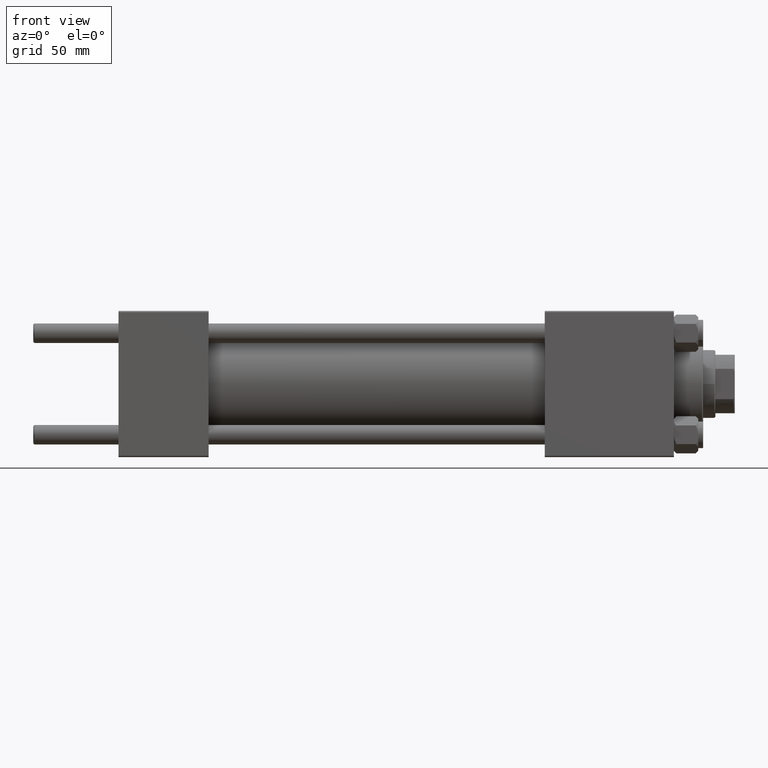
[diagram: clean part render]
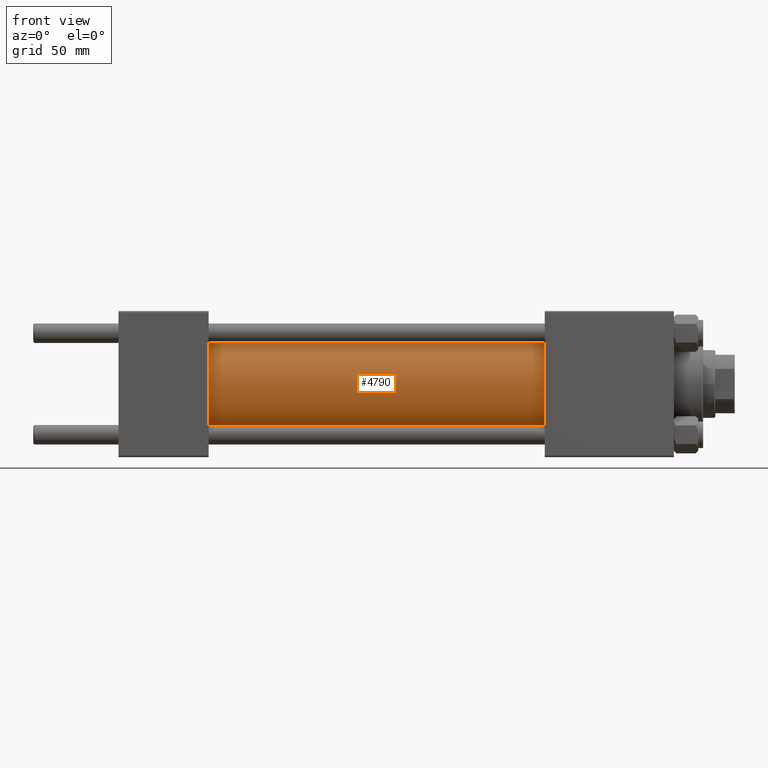
[diagram: same view with one face highlighted and labeled with its STEP entity id]
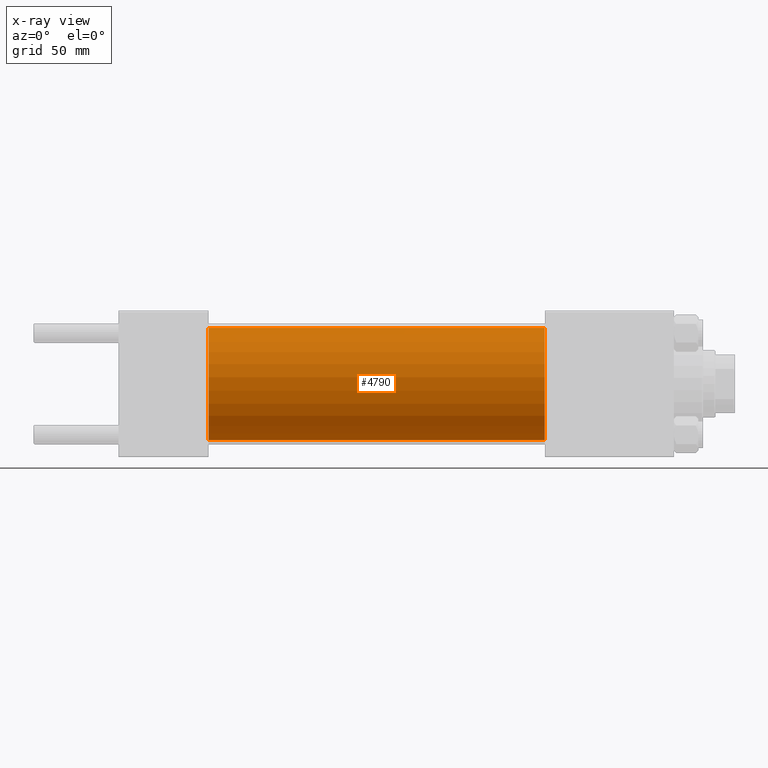
[diagram: x-ray of the same camera — body ghosted, the highlighted face saturated]
A machine part, front view. The second image highlights one B-rep face of the part: STEP entity #4790.
The next image is the same camera in x-ray: the body ghosted, the highlighted face saturated — about 0% of this face is hidden behind the body in this view.
In plain terms, the highlighted cylindrical surface (partial cylindrical patch) has radius 23 mm, axis along (-1, -0, -0).
Its self-contained STEP definition (entity closure, byte-faithful):
#2761 = ORIENTED_EDGE ( 'NONE', *, *, #9564, .F. ) ;
#2769 = VERTEX_POINT ( 'NONE', #7153 ) ;
#3510 = CYLINDRICAL_SURFACE ( 'NONE', #25322, 23.00000000000000000 ) ;
#4790 = ADVANCED_FACE ( 'NONE', ( #30746 ), #3510, .T. ) ;
#4984 = LINE ( 'NONE', #20365, #49148 ) ;
#5688 = CARTESIAN_POINT ( 'NONE',  ( 175.0000000000000284, 2.816687638038912352E-15, -23.00000000000000000 ) ) ;
#7153 = CARTESIAN_POINT ( 'NONE',  ( 37.00000000000000711, 0.000000000000000000, 23.00000000000000000 ) ) ;
#8164 = DIRECTION ( 'NONE',  ( 1.000000000000000000, 0.000000000000000000, 0.000000000000000000 ) ) ;
#8896 = VERTEX_POINT ( 'NONE', #30347 ) ;
#9564 = EDGE_CURVE ( 'NONE', #8896, #18023, #24600, .T. ) ;
#11310 = DIRECTION ( 'NONE',  ( 0.000000000000000000, 0.000000000000000000, 1.000000000000000000 ) ) ;
#12209 = VERTEX_POINT ( 'NONE', #38378 ) ;
#12297 = EDGE_CURVE ( 'NONE', #2769, #12209, #31159, .T. ) ;
#12357 = DIRECTION ( 'NONE',  ( 1.000000000000000000, -0.000000000000000000, 0.000000000000000000 ) ) ;
#13129 = EDGE_CURVE ( 'NONE', #18023, #12209, #34731, .T. ) ;
#13167 = DIRECTION ( 'NONE',  ( -1.000000000000000000, -0.000000000000000000, -0.000000000000000000 ) ) ;
#14141 = AXIS2_PLACEMENT_3D ( 'NONE', #26610, #8164, #15983 ) ;
#15983 = DIRECTION ( 'NONE',  ( 0.000000000000000000, 0.000000000000000000, -1.000000000000000000 ) ) ;
#18023 = VERTEX_POINT ( 'NONE', #5688 ) ;
#19818 = CARTESIAN_POINT ( 'NONE',  ( 175.0000000000000284, 2.816687638038912352E-15, -23.00000000000000000 ) ) ;
#20180 = CARTESIAN_POINT ( 'NONE',  ( 37.00000000000000711, 0.000000000000000000, 0.000000000000000000 ) ) ;
#20365 = CARTESIAN_POINT ( 'NONE',  ( 175.0000000000000284, 0.000000000000000000, 23.00000000000000000 ) ) ;
#21213 = VECTOR ( 'NONE', #13167, 1000.000000000000000 ) ;
#23436 = DIRECTION ( 'NONE',  ( -1.000000000000000000, -0.000000000000000000, -0.000000000000000000 ) ) ;
#23981 = DIRECTION ( 'NONE',  ( 0.000000000000000000, 0.000000000000000000, 1.000000000000000000 ) ) ;
#24315 = EDGE_CURVE ( 'NONE', #8896, #2769, #4984, .T. ) ;
#24600 = CIRCLE ( 'NONE', #14141, 23.00000000000000000 ) ;
#25322 = AXIS2_PLACEMENT_3D ( 'NONE', #34547, #23436, #11310 ) ;
#26610 = CARTESIAN_POINT ( 'NONE',  ( 175.0000000000000284, 0.000000000000000000, 0.000000000000000000 ) ) ;
#29824 = ORIENTED_EDGE ( 'NONE', *, *, #13129, .F. ) ;
#30347 = CARTESIAN_POINT ( 'NONE',  ( 175.0000000000000284, 0.000000000000000000, 23.00000000000000000 ) ) ;
#30671 = EDGE_LOOP ( 'NONE', ( #29824, #2761, #36151, #45547 ) ) ;
#30746 = FACE_OUTER_BOUND ( 'NONE', #30671, .T. ) ;
#31159 = CIRCLE ( 'NONE', #40846, 23.00000000000000000 ) ;
#34547 = CARTESIAN_POINT ( 'NONE',  ( 175.0000000000000284, 0.000000000000000000, 0.000000000000000000 ) ) ;
#34731 = LINE ( 'NONE', #19818, #21213 ) ;
#35281 = DIRECTION ( 'NONE',  ( -1.000000000000000000, -0.000000000000000000, -0.000000000000000000 ) ) ;
#36151 = ORIENTED_EDGE ( 'NONE', *, *, #24315, .T. ) ;
#38378 = CARTESIAN_POINT ( 'NONE',  ( 37.00000000000000711, 2.816687638038912352E-15, -23.00000000000000000 ) ) ;
#40846 = AXIS2_PLACEMENT_3D ( 'NONE', #20180, #12357, #23981 ) ;
#45547 = ORIENTED_EDGE ( 'NONE', *, *, #12297, .T. ) ;
#49148 = VECTOR ( 'NONE', #35281, 1000.000000000000000 ) ;